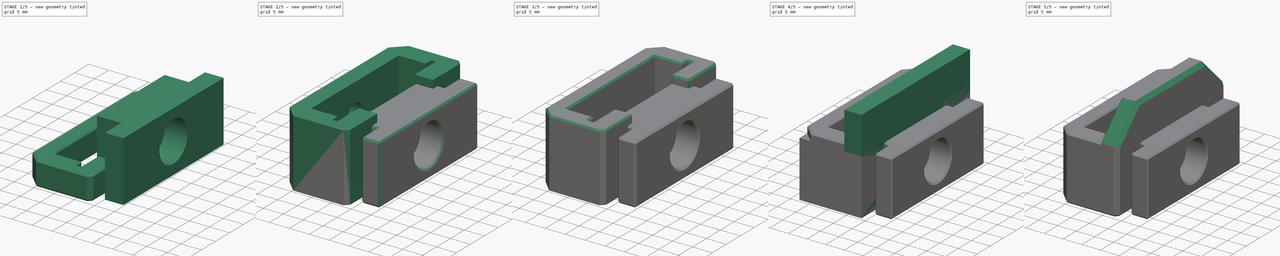
[diagram: build sequence overview — one tinted view per stage of 5, left to right]
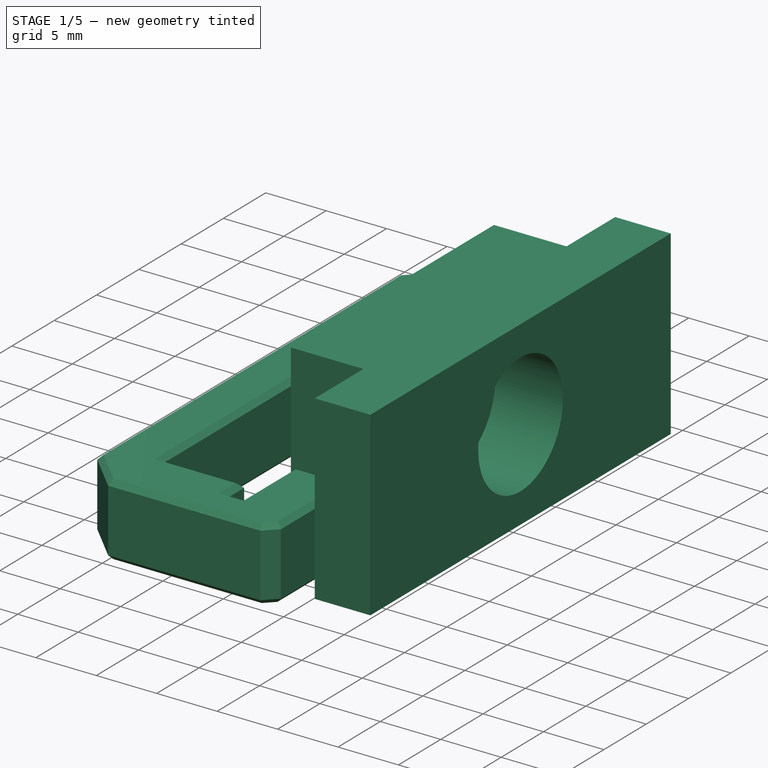
[diagram: stage 1 of 5 — iso view after this stage's code; geometry added in this stage tinted green]
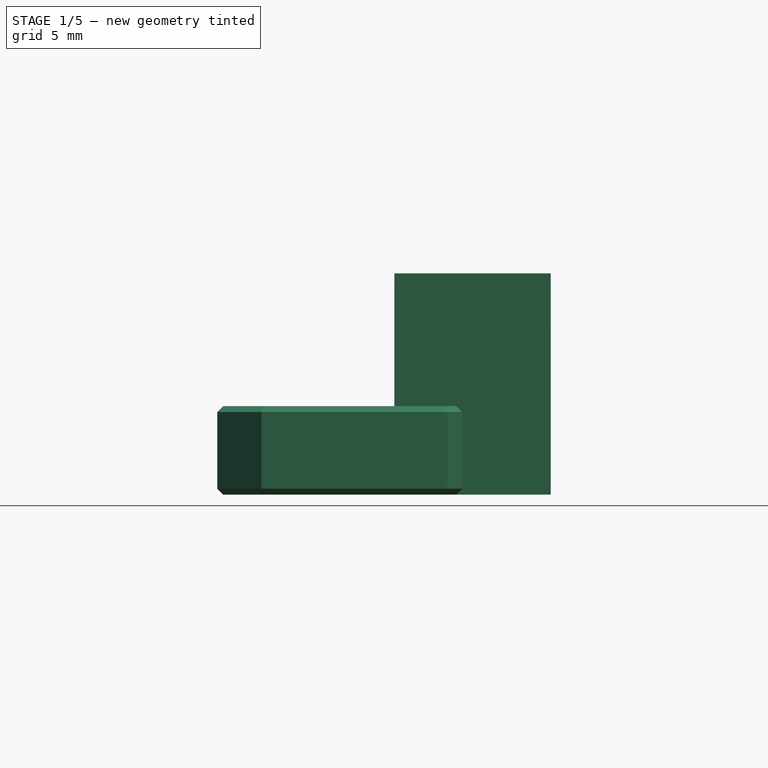
[diagram: stage 1 of 5 — front view after this stage's code; geometry added in this stage tinted green]
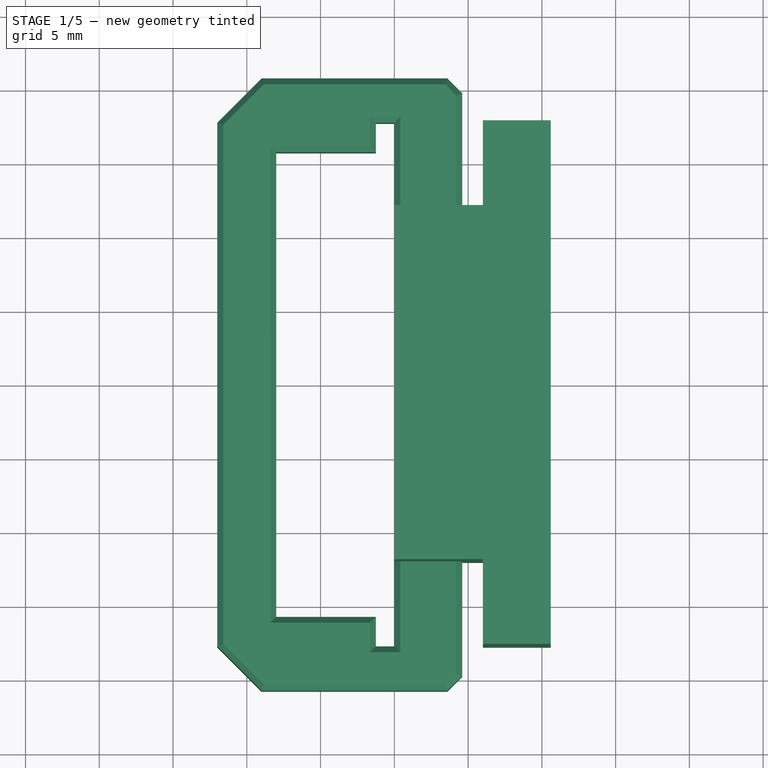
[diagram: stage 1 of 5 — top view after this stage's code; geometry added in this stage tinted green]
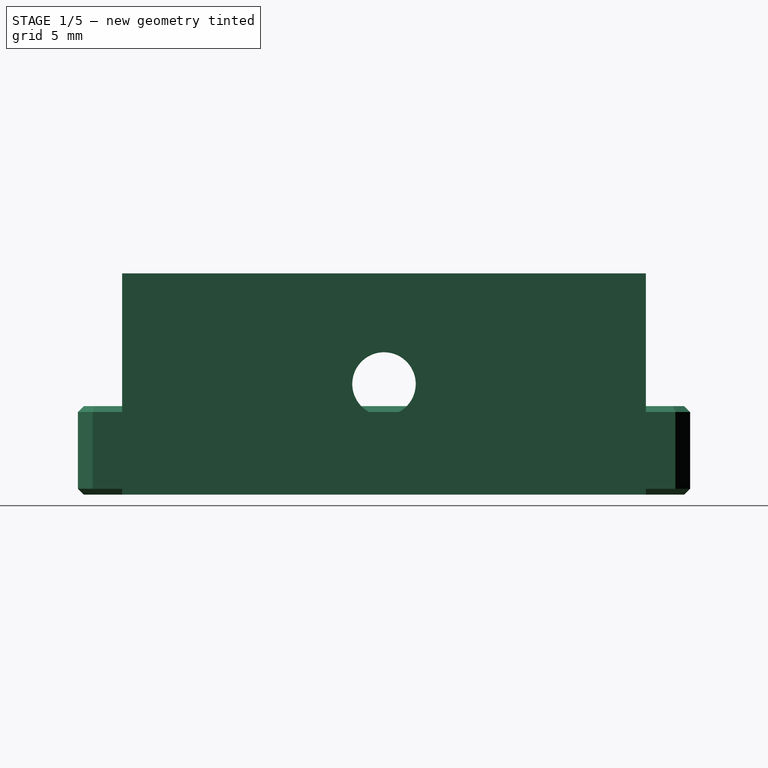
[diagram: stage 1 of 5 — right view after this stage's code; geometry added in this stage tinted green]
FCSTD DOCUMENT  (FreeCAD 0.19R24291 (Git))
Label: din-end
License: All rights reserved
LicenseURL: http://en.wikipedia.org/wiki/All_rights_reserved
objects: Sketcher::SketchObject×11, PartDesign::Chamfer×7, PartDesign::Pocket×6, PartDesign::Pad×5, PartDesign::Body×4, Part::Feature×4, Part::Extrusion×3, PartDesign::FeatureBase×2, Part::Chamfer×1
note: 61 computed .brp shape members not serialized (recipe doc carries the construction recipe); baked Part::Feature solids carry a one-line shape summary decoded from their .brp

FEATURE [PartDesign::Body] Body002  label="end-stopper"
  BaseFeature = -> Extrude001
  Group = -> [BaseFeature001,Sketch006,Pad003,Sketch007,Pocket003,Chamfer005]
  Origin = -> Origin002
  Tip = -> Chamfer005
FEATURE [Sketcher::SketchObject] Sketch008
  FullyConstrained = true
  MapMode = 5
  Support = -> [XY_Plane003]
  sketch-geometry (8):
    g0: LineSegment StartX=6 StartY=12 StartZ=0 EndX=0 EndY=12 EndZ=0
    g1: LineSegment StartX=0 StartY=12 StartZ=0 EndX=0 EndY=-12 EndZ=0
    g2: LineSegment StartX=0 StartY=-12 StartZ=0 EndX=6 EndY=-12 EndZ=0
    g3: LineSegment StartX=6 StartY=-12 StartZ=0 EndX=6 EndY=-17.75 EndZ=0
    g4: LineSegment StartX=6 StartY=-17.75 StartZ=0 EndX=10.6 EndY=-17.75 EndZ=0
    g5: LineSegment StartX=10.6 StartY=-17.75 StartZ=0 EndX=10.6 EndY=17.75 EndZ=0
    g6: LineSegment StartX=10.6 StartY=17.75 StartZ=0 EndX=6 EndY=17.75 EndZ=0
    g7: LineSegment StartX=6 StartY=17.75 StartZ=0 EndX=6 EndY=12 EndZ=0
  constraints (24):
    c: PointOnObject(g0,g-2)
    c: Horizontal(g0)
    c: Coincident(g0,g1)
    c: PointOnObject(g1,g-2)
    c: Coincident(g1,g2)
    c: Horizontal(g2)
    c: Coincident(g2,g3)
    c: Vertical(g3)
    c: Coincident(g3,g4)
    c: Horizontal(g4)
    c: Coincident(g4,g5)
    c: Vertical(g5)
    c: Coincident(g5,g6)
    c: Coincident(g6,g7)
    c: Coincident(g7,g0)
    c: Vertical(g7)
    c: Horizontal(g6)
    c: DistanceY(g5,g5) = 35.5
    c: DistanceY(g-1,g5) = 17.75
    c: DistanceX(g6,g6) = 4.6
    c: DistanceX(g0,g0) = 6
    c: Vertical(g0,g2)
    c: DistanceY(g1,g1) = 24
    c: DistanceY(g-1,g0) = 12
FEATURE [PartDesign::Pad] Pad004
  Direction = (1,1,1)
  Length = 15
  Length2 = 100
  Profile = -> Sketch008
  Type = 0
FEATURE [Sketcher::SketchObject] Sketch009
  FullyConstrained = true
  MapMode = 5
  Placement = pos=(10.6,0,0) rot=(0.57735,0.57735,0.57735;2.0944rad)
  Support = -> [Pad004]
  sketch-geometry (1):
    g0: Circle CenterX=0 CenterY=7.5 CenterZ=0 NormalX=0 NormalY=0 NormalZ=1 AngleXU=0 Radius=2.15
  constraints (3):
    c: PointOnObject(g0,g-2)
    c: Radius(g0) = 2.15
    c: DistanceY(g-1,g0) = 7.5
FEATURE [PartDesign::Pocket] Pocket004
  BaseFeature = -> Pad004
  Length = 5
  Length2 = 100
  Profile = -> Sketch009
  Type = 1
FEATURE [Sketcher::SketchObject] Sketch010
  ExternalGeometry = -> [Pocket004]
  FullyConstrained = true
  MapMode = 5
  Placement = pos=(10.6,0,0) rot=(0.57735,0.57735,0.57735;2.0944rad)
  Support = -> [Pocket004]
  sketch-geometry (1):
    g0: Circle CenterX=0 CenterY=7.5 CenterZ=0 NormalX=0 NormalY=0 NormalZ=1 AngleXU=0 Radius=5
  constraints (2):
    c: Coincident(g0,g-3)
    c: Radius(g0) = 5
FEATURE [PartDesign::Pocket] Pocket005
  BaseFeature = -> Pocket004
  Length = 5.6
  Length2 = 100
  Profile = -> Sketch010
  Type = 0
FEATURE [PartDesign::Body] Body003  label="front-mid-stopper"
  Group = -> [Sketch008,Pad004,Sketch009,Pocket004,Sketch010,Pocket005,Chamfer006]
  Origin = -> Origin003
  Tip = -> Chamfer006
FEATURE [Part::Feature] Cut_cs003  label="profile003"
  shape: bbox 16.6 x 41.5 x 5e-07 mm, 0 faces, 0 solids (baked)
FEATURE [Part::Extrusion] Extrude002
  Base = -> Cut_cs003
  Dir = (0,0,1)
  DirMode = 2
  FaceMakerClass = Part::FaceMakerBullseye
  LengthFwd = 6
  LengthRev = 0
  Solid = true
  Symmetric = false
FEATURE [Part::Chamfer] Chamfer007  label="short-spacer"
  Base = -> Extrude002
  Edges = 44 edges r=0.4: [Edge3,Edge4,Edge6,Edge7,Edge9,Edge10,Edge12,Edge13,Edge15,Edge16,Edge18,Edge19,Edge20,Edge21,Edge22,Edge23,Edge24,Edge25,Edge27,Edge28,Edge30,Edge31,Edge33,Edge34,Edge36,Edge37,Edge39,Edge40,Edge42,Edge43,Edge45,Edge46,Edge48,Edge49,Edge50,Edge51,Edge52,Edge53,Edge54,Edge55,Edge57,Edge58,Edge59,+1 more]
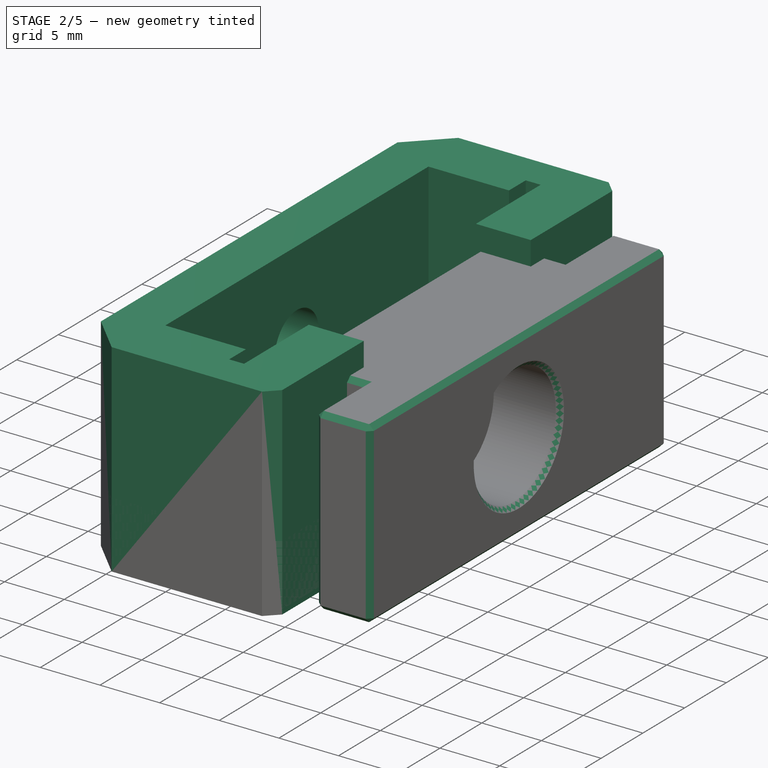
[diagram: stage 2 of 5 — iso view after this stage's code; geometry added in this stage tinted green]
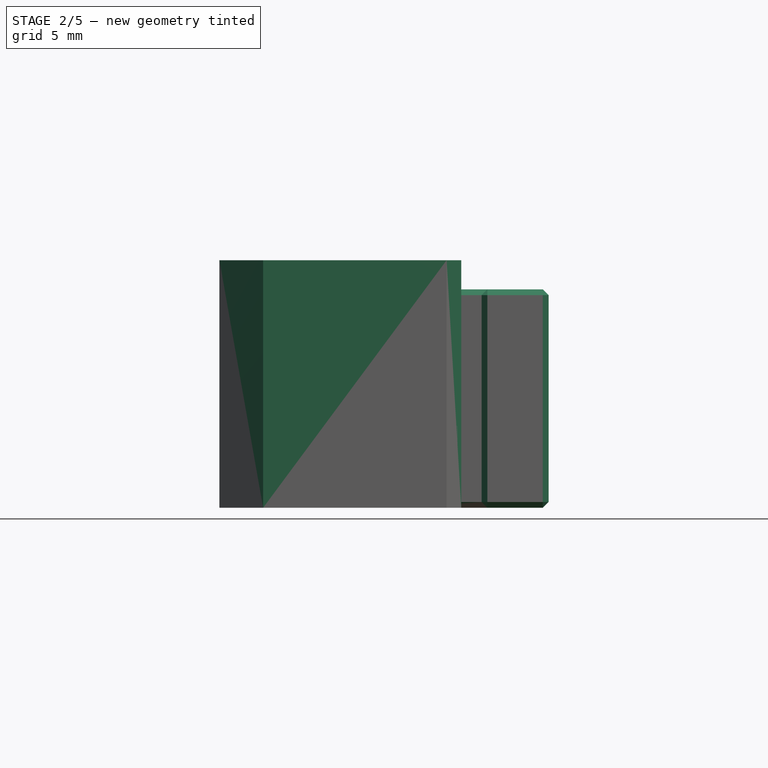
[diagram: stage 2 of 5 — front view after this stage's code; geometry added in this stage tinted green]
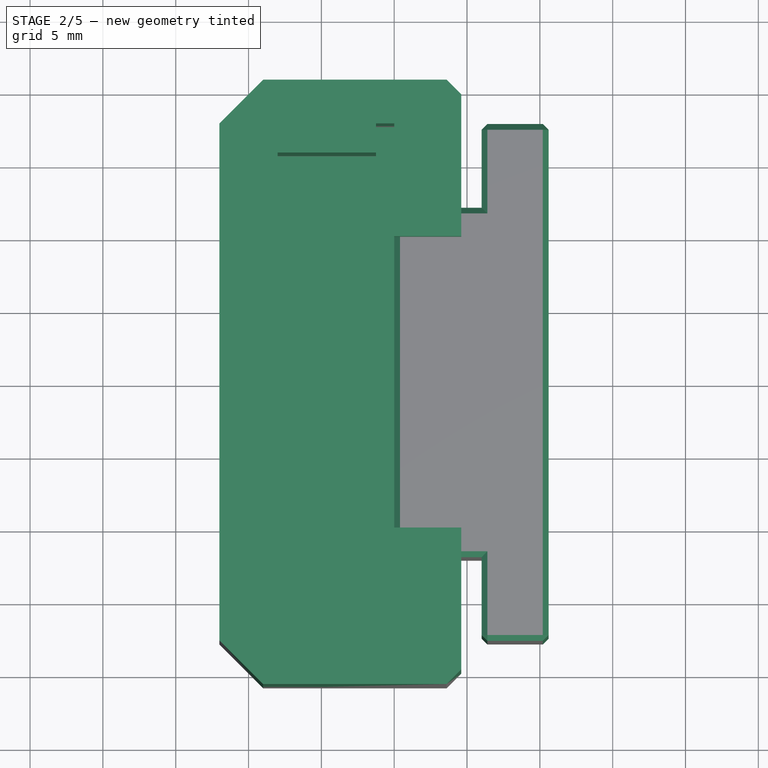
[diagram: stage 2 of 5 — top view after this stage's code; geometry added in this stage tinted green]
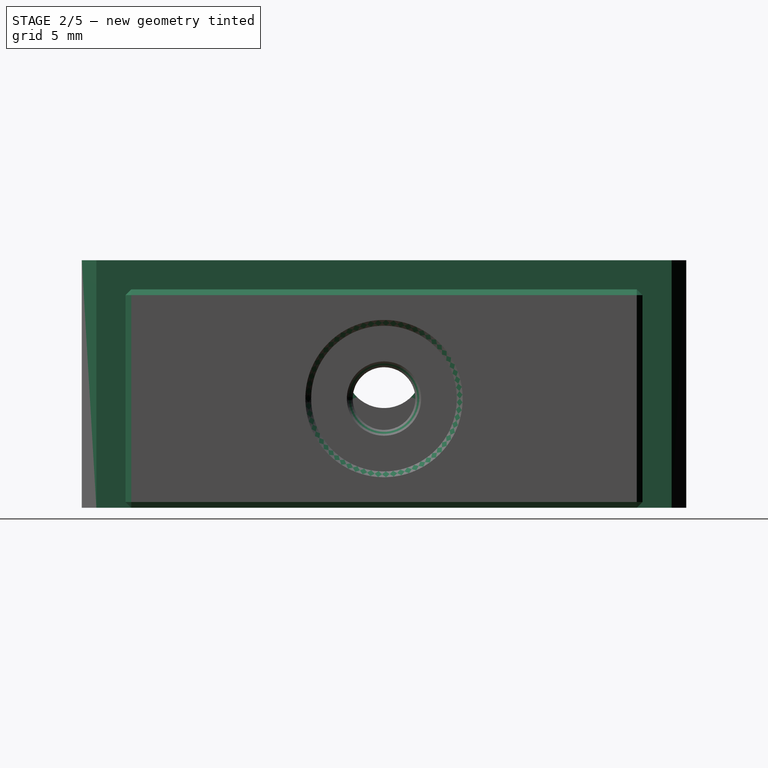
[diagram: stage 2 of 5 — right view after this stage's code; geometry added in this stage tinted green]
FEATURE [Part::Extrusion] Extrude001  label="end-stopper-base"
  Base = -> Cut_cs002
  Dir = (0,0,1)
  DirMode = 2
  FaceMakerClass = Part::FaceMakerBullseye
  LengthFwd = 17
  LengthRev = 0
  Solid = true
  Symmetric = false
FEATURE [PartDesign::Body] Body001  label="mid-stopper"
  BaseFeature = -> Extrude
  Group = -> [BaseFeature,Sketch005,Pocket002,Chamfer004]
  Origin = -> Origin001
  Tip = -> Chamfer004
FEATURE [PartDesign::FeatureBase] BaseFeature001
  BaseFeature = -> Extrude001
FEATURE [Sketcher::SketchObject] Sketch006
  ExternalGeometry = -> [BaseFeature001]
  FullyConstrained = true
  MapMode = 5
  Placement = pos=(0,0,0) rot=(1,0,0;3.14159rad)
  Support = -> [BaseFeature001]
  sketch-geometry (8):
    g0: LineSegment StartX=4.6 StartY=19.75 StartZ=0 EndX=3.6 EndY=20.75 EndZ=0
    g1: LineSegment StartX=3.6 StartY=20.75 StartZ=0 EndX=-9 EndY=20.75 EndZ=0
    g2: LineSegment StartX=-9 StartY=20.75 StartZ=0 EndX=-12 EndY=17.75 EndZ=0
    g3: LineSegment StartX=-12 StartY=17.75 StartZ=0 EndX=-12 EndY=-17.75 EndZ=0
    g4: LineSegment StartX=-12 StartY=-17.75 StartZ=0 EndX=-9 EndY=-20.75 EndZ=0
    g5: LineSegment StartX=-9 StartY=-20.75 StartZ=0 EndX=3.6 EndY=-20.75 EndZ=0
    g6: LineSegment StartX=3.6 StartY=-20.75 StartZ=0 EndX=4.6 EndY=-19.75 EndZ=0
    g7: LineSegment StartX=4.6 StartY=-19.75 StartZ=0 EndX=4.6 EndY=19.75 EndZ=0
  constraints (16):
    c: Coincident(g-5,g0)
    c: Coincident(g0,g-5)
    c: Coincident(g0,g1)
    c: Coincident(g1,g-4)
    c: Coincident(g1,g2)
    c: Coincident(g2,g-4)
    c: Coincident(g2,g3)
    c: Coincident(g3,g-8)
    c: Coincident(g3,g4)
    c: Coincident(g4,g-8)
    c: Coincident(g4,g5)
    c: Coincident(g5,g-7)
    c: Coincident(g5,g6)
    c: Coincident(g6,g-6)
    c: Coincident(g6,g7)
    c: Coincident(g7,g0)
FEATURE [PartDesign::Pad] Pad003
  BaseFeature = -> BaseFeature001
  Direction = (1,1,1)
  Length = 2
  Length2 = 100
  Profile = -> Sketch006
  Reversed = true
  Type = 0
FEATURE [Sketcher::SketchObject] Sketch007
  FullyConstrained = true
  MapMode = 5
  Placement = pos=(-12,0,0) rot=(0.57735,-0.57735,-0.57735;2.0944rad)
  Support = -> [Pad003]
  sketch-geometry (1):
    g0: Circle CenterX=0 CenterY=9.5 CenterZ=0 NormalX=0 NormalY=0 NormalZ=1 AngleXU=0 Radius=2.65
  constraints (3):
    c: PointOnObject(g0,g-2)
    c: DistanceY(g-1,g0) = 9.5
    c: Radius(g0) = 2.65
FEATURE [PartDesign::Pocket] Pocket003
  BaseFeature = -> Pad003
  Length = 5
  Length2 = 100
  Profile = -> Sketch007
  Refine = true
  Type = 1
FEATURE [PartDesign::Chamfer] Chamfer006
  Angle = 45
  Base = -> Pocket005 [Face5,Face4,Edge2,Edge11,Edge10,Edge26,Edge27,Edge22,Edge5,Edge24,Edge28]
  BaseFeature = -> Pocket005
  ChamferType = 0
  FlipDirection = false
  Size = 0.4
  Size2 = 1
  SupportTransform = false
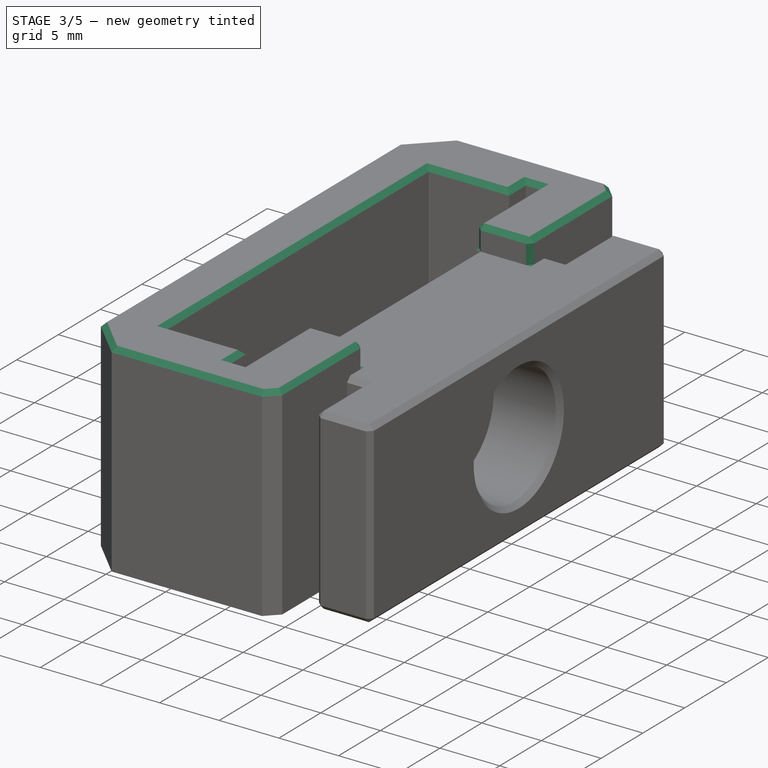
[diagram: stage 3 of 5 — iso view after this stage's code; geometry added in this stage tinted green]
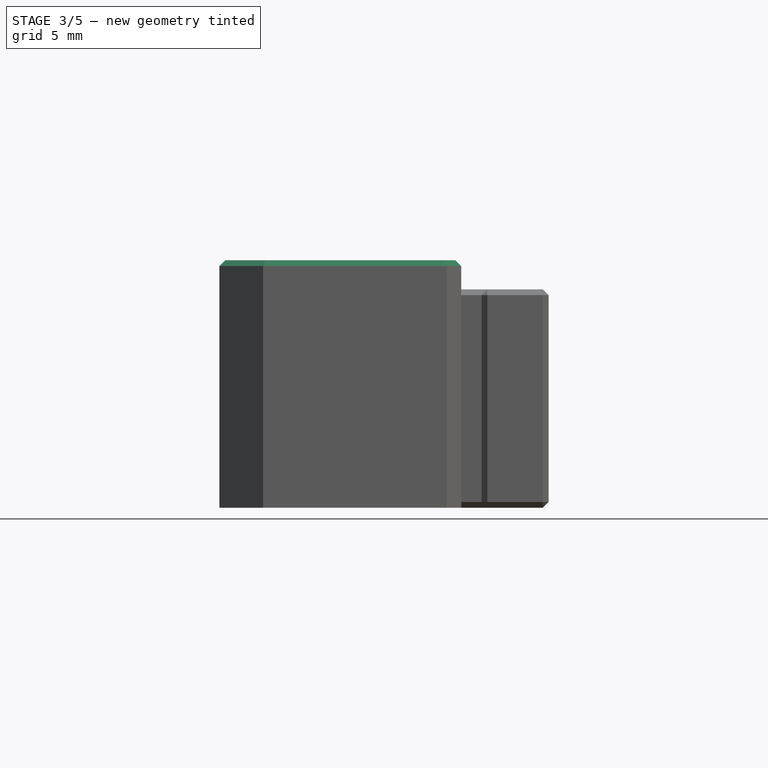
[diagram: stage 3 of 5 — front view after this stage's code; geometry added in this stage tinted green]
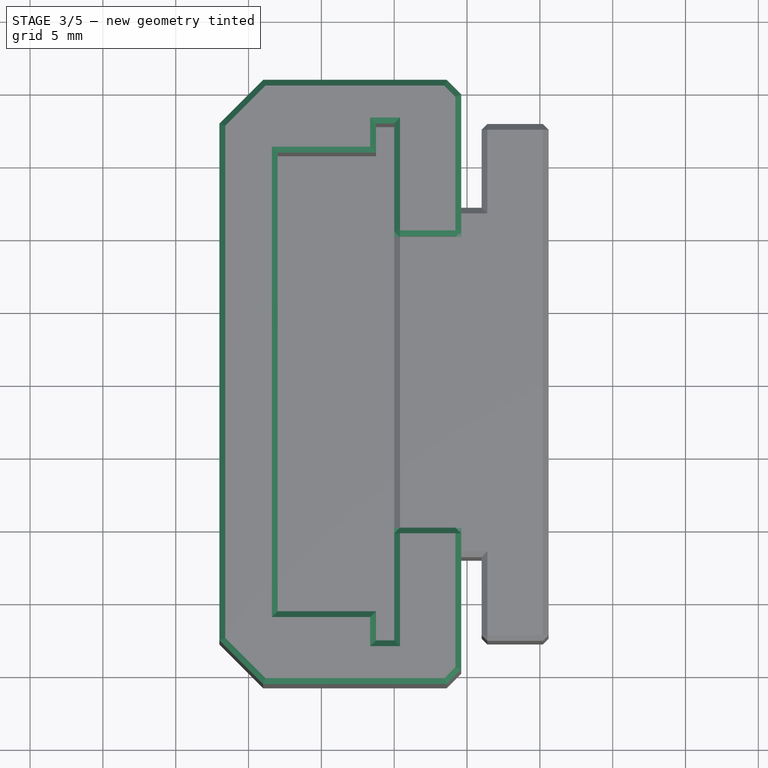
[diagram: stage 3 of 5 — top view after this stage's code; geometry added in this stage tinted green]
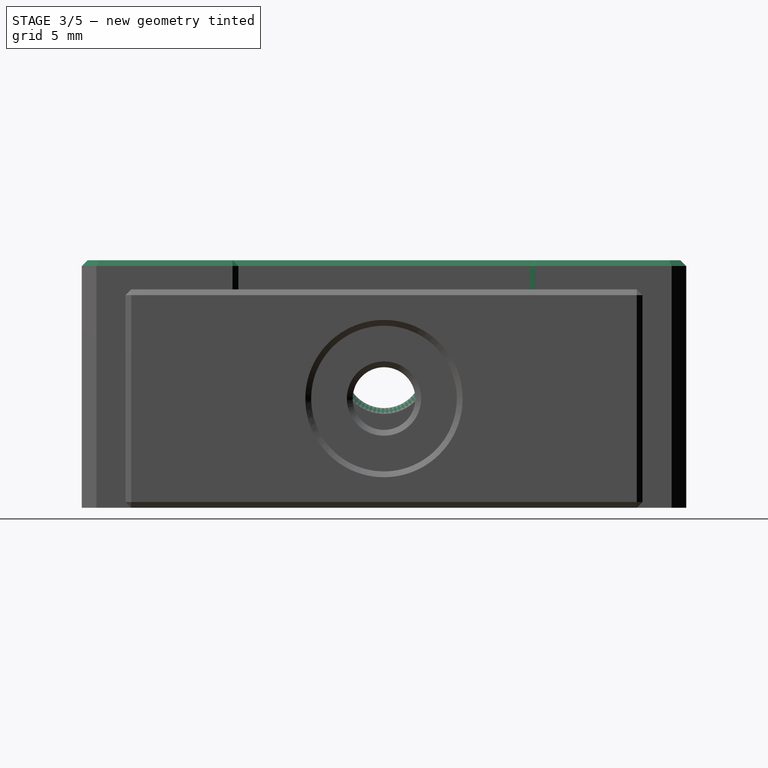
[diagram: stage 3 of 5 — right view after this stage's code; geometry added in this stage tinted green]
FEATURE [PartDesign::Body] Body
  Group = -> [Sketch,Pad,Sketch001,Pad001,Sketch002,Pocket,Sketch003,Pocket001,Sketch004,Pad002,Chamfer,Chamfer001,Chamfer002,Chamfer003]
  Origin = -> Origin
  Tip = -> Chamfer003
FEATURE [Part::Feature] Cut_cs  label="profile"
  shape: bbox 16.6 x 41.5 x 5e-07 mm, 0 faces, 0 solids (baked)
FEATURE [Part::Feature] Cut_cs001  label="profile001"
  shape: bbox 16.6 x 41.5 x 5e-07 mm, 0 faces, 0 solids (baked)
FEATURE [Part::Feature] Cut_cs002  label="profile002"
  shape: bbox 16.6 x 41.5 x 5e-07 mm, 0 faces, 0 solids (baked)
FEATURE [Part::Extrusion] Extrude  label="mid-stopper-base"
  Base = -> Cut_cs001
  Dir = (0,0,1)
  DirMode = 2
  FaceMakerClass = Part::FaceMakerBullseye
  LengthFwd = 15
  LengthRev = 0
  Solid = true
  Symmetric = false
FEATURE [PartDesign::FeatureBase] BaseFeature
  BaseFeature = -> Extrude
FEATURE [Sketcher::SketchObject] Sketch005
  FullyConstrained = true
  MapMode = 5
  Placement = pos=(-12,0,0) rot=(0.57735,-0.57735,-0.57735;2.0944rad)
  Support = -> [BaseFeature]
  sketch-geometry (1):
    g0: Circle CenterX=0 CenterY=7.5 CenterZ=0 NormalX=0 NormalY=0 NormalZ=1 AngleXU=0 Radius=2.65
  constraints (3):
    c: PointOnObject(g0,g-2)
    c: DistanceY(g-1,g0) = 7.5
    c: Radius(g0) = 2.65
FEATURE [PartDesign::Pocket] Pocket002
  BaseFeature = -> BaseFeature
  Length = 5
  Length2 = 100
  Profile = -> Sketch005
  Type = 1
FEATURE [PartDesign::Chamfer] Chamfer005
  Angle = 45
  Base = -> Pocket003 [Face16,Face1,Edge45,Edge34,Edge22,Edge23,Edge42,Edge44,Edge47]
  BaseFeature = -> Pocket003
  ChamferType = 0
  FlipDirection = false
  Size = 0.4
  Size2 = 1
  SupportTransform = false
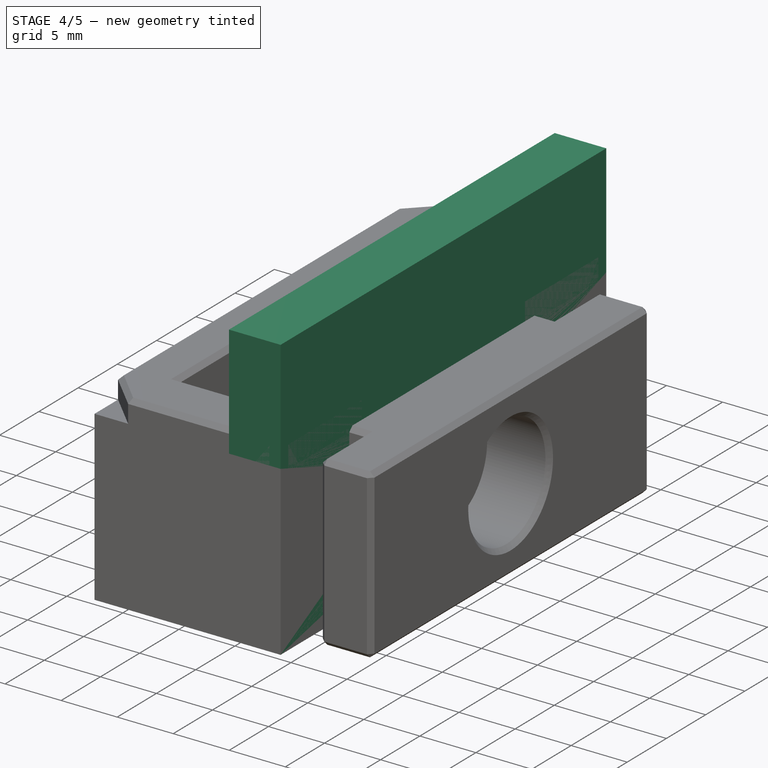
[diagram: stage 4 of 5 — iso view after this stage's code; geometry added in this stage tinted green]
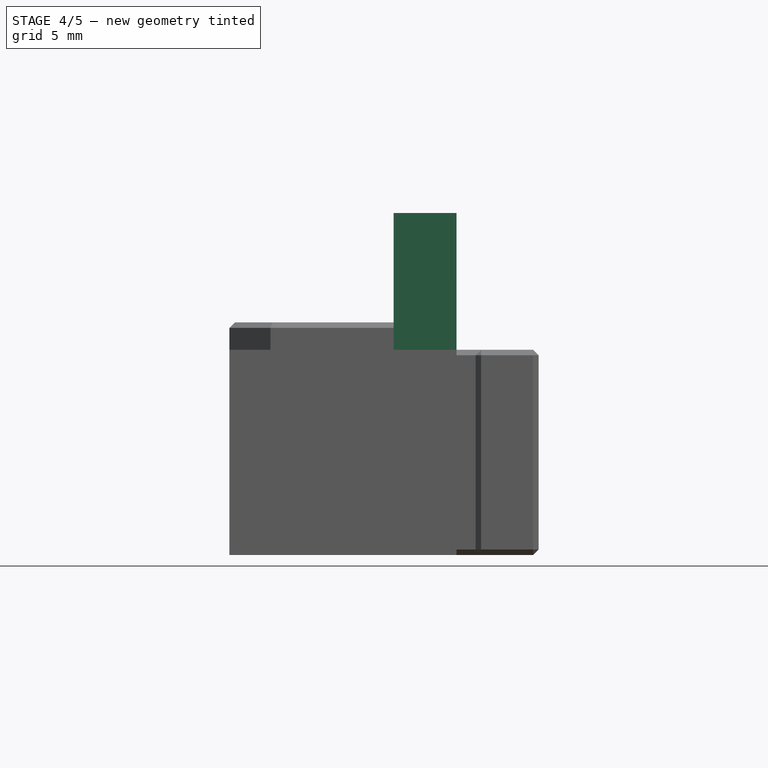
[diagram: stage 4 of 5 — front view after this stage's code; geometry added in this stage tinted green]
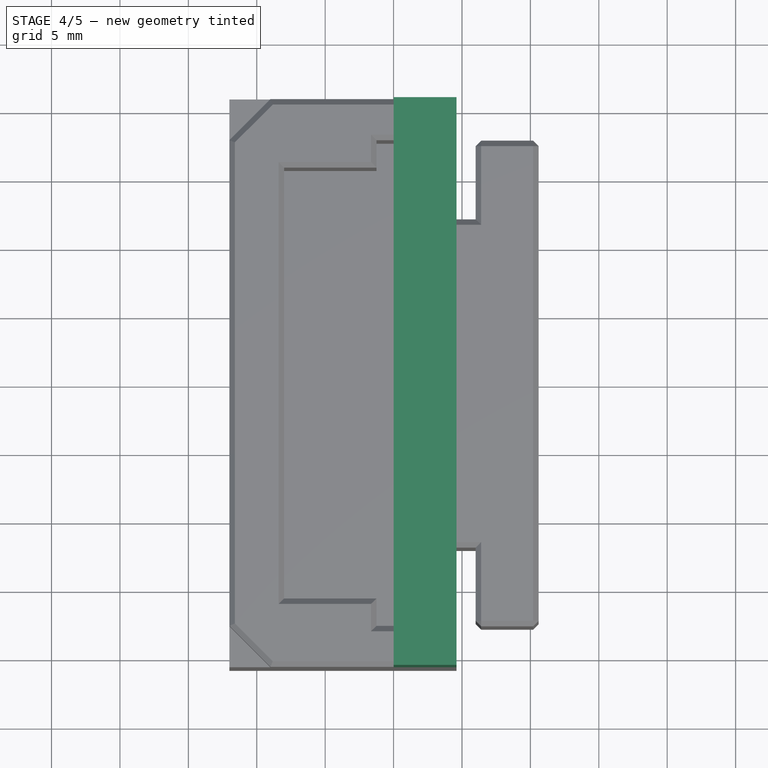
[diagram: stage 4 of 5 — top view after this stage's code; geometry added in this stage tinted green]
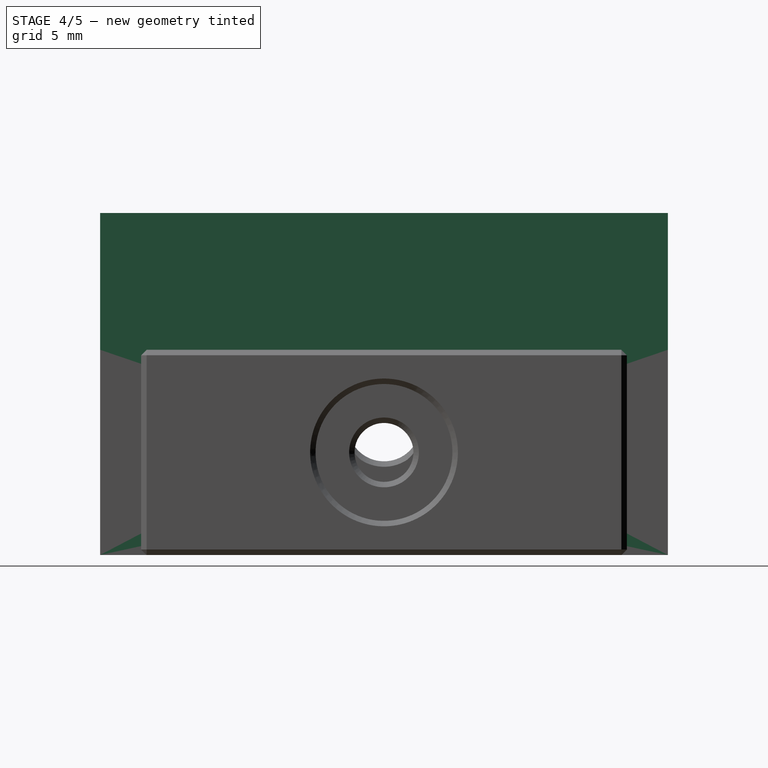
[diagram: stage 4 of 5 — right view after this stage's code; geometry added in this stage tinted green]
FEATURE [Sketcher::SketchObject] Sketch
  FullyConstrained = true
  MapMode = 5
  Support = -> [XY_Plane]
  sketch-geometry (12):
    g0: LineSegment StartX=0 StartY=17.75 StartZ=0 EndX=0 EndY=-17.75 EndZ=0
    g1: LineSegment StartX=0 StartY=-17.75 StartZ=0 EndX=-1.25 EndY=-17.75 EndZ=0
    g2: LineSegment StartX=-1.25 StartY=-17.75 StartZ=0 EndX=-1.25 EndY=-15.75 EndZ=0
    g3: LineSegment StartX=-1.25 StartY=-15.75 StartZ=0 EndX=-8 EndY=-15.75 EndZ=0
    g4: LineSegment StartX=-8 StartY=-15.75 StartZ=0 EndX=-8 EndY=15.75 EndZ=0
    g5: LineSegment StartX=-8 StartY=15.75 StartZ=0 EndX=-1.25 EndY=15.75 EndZ=0
    g6: LineSegment StartX=-1.25 StartY=15.75 StartZ=0 EndX=-1.25 EndY=17.75 EndZ=0
    g7: LineSegment StartX=-1.25 StartY=17.75 StartZ=0 EndX=0 EndY=17.75 EndZ=0
    g8: LineSegment StartX=-12 StartY=20.75 StartZ=0 EndX=4.6 EndY=20.75 EndZ=0
    g9: LineSegment StartX=4.6 StartY=20.75 StartZ=0 EndX=4.6 EndY=-20.75 EndZ=0
    g10: LineSegment StartX=4.6 StartY=-20.75 StartZ=0 EndX=-12 EndY=-20.75 EndZ=0
    g11: LineSegment StartX=-12 StartY=-20.75 StartZ=0 EndX=-12 EndY=20.75 EndZ=0
  constraints (36):
    c: PointOnObject(g0,g-2)
    c: PointOnObject(g0,g-2)
    c: Coincident(g0,g1)
    c: Horizontal(g1)
    c: Coincident(g1,g2)
    c: Vertical(g2)
    c: Coincident(g2,g3)
    c: Horizontal(g3)
    c: Coincident(g3,g4)
    c: Vertical(g4)
    c: Coincident(g4,g5)
    c: Horizontal(g5)
    c: Coincident(g5,g6)
    c: Coincident(g6,g7)
    c: Coincident(g7,g0)
    c: Horizontal(g7)
    c: Vertical(g6)
    c: Vertical(g5,g2)
    c: DistanceY(g0,g0) = 35.5
    c: DistanceY(g-1,g0) = 17.75
    c: DistanceY(g4,g4) = 31.5
    c: DistanceY(g-1,g4) = 15.75
    c: DistanceX(g7,g7) = 1.25
    c: DistanceX(g4,g0) = 8
    c: Coincident(g8,g9)
    c: Coincident(g9,g10)
    c: Coincident(g10,g11)
    c: Coincident(g11,g8)
    c: Horizontal(g8)
    c: Horizontal(g10)
    c: Vertical(g9)
    c: Vertical(g11)
    c: DistanceY(g0,g8) = 3
    c: DistanceY(g9,g0) = 3
    c: DistanceX(g0,g9) = 4.6
    c: DistanceX(g10,g3) = 4
FEATURE [PartDesign::Pad] Pad
  Direction = (1,1,1)
  Length = 15
  Length2 = 100
  Profile = -> Sketch
  Type = 0
FEATURE [Sketcher::SketchObject] Sketch001
  FullyConstrained = true
  MapMode = 5
  Placement = pos=(4.6,0,0) rot=(0.57735,0.57735,0.57735;2.0944rad)
  Support = -> [Pad]
  sketch-geometry (4):
    g0: LineSegment StartX=-20.75 StartY=15 StartZ=0 EndX=20.75 EndY=15 EndZ=0
    g1: LineSegment StartX=20.75 StartY=15 StartZ=0 EndX=20.75 EndY=25 EndZ=0
    g2: LineSegment StartX=20.75 StartY=25 StartZ=0 EndX=-20.75 EndY=25 EndZ=0
    g3: LineSegment StartX=-20.75 StartY=25 StartZ=0 EndX=-20.75 EndY=15 EndZ=0
  constraints (12):
    c: Horizontal(g0)
    c: Coincident(g0,g1)
    c: Coincident(g1,g2)
    c: Horizontal(g2)
    c: Coincident(g2,g3)
    c: Coincident(g3,g0)
    c: DistanceY(g-1,g0) = 15
    c: DistanceY(g0,g2) = 10
    c: Vertical(g3)
    c: Vertical(g1)
    c: DistanceX(g0,g-1) = 20.75
    c: DistanceX(g-1,g0) = 20.75
FEATURE [PartDesign::Pad] Pad001
  BaseFeature = -> Pad
  Direction = (1,1,1)
  Length = 10
  Length2 = 100
  Profile = -> Sketch001
  Type = 3
  UpToFace = -> Pad [Face12]
FEATURE [Sketcher::SketchObject] Sketch002
  FullyConstrained = true
  MapMode = 5
  Placement = pos=(4.6,0,0) rot=(0.57735,0.57735,0.57735;2.0944rad)
  Support = -> [Pad001]
  sketch-geometry (1):
    g0: Circle CenterX=0 CenterY=9 CenterZ=0 NormalX=0 NormalY=0 NormalZ=1 AngleXU=0 Radius=4.5
  constraints (3):
    c: PointOnObject(g0,g-2)
    c: Radius(g0) = 4.5
    c: DistanceY(g-1,g0) = 9
FEATURE [PartDesign::Pocket] Pocket
  BaseFeature = -> Pad001
  Length = 0
  Length2 = 100
  Profile = -> Sketch002
  Type = 3
  UpToFace = -> Pad001 [Face16]
FEATURE [Sketcher::SketchObject] Sketch003
  FullyConstrained = true
  MapMode = 5
  Placement = pos=(-12,0,0) rot=(0.57735,-0.57735,-0.57735;2.0944rad)
  Support = -> [Pocket]
  sketch-geometry (1):
    g0: Circle CenterX=0 CenterY=9 CenterZ=0 NormalX=0 NormalY=0 NormalZ=1 AngleXU=0 Radius=2.65
  constraints (3):
    c: PointOnObject(g0,g-2)
    c: DistanceY(g-1,g0) = 9
    c: Radius(g0) = 2.65
FEATURE [PartDesign::Pocket] Pocket001
  BaseFeature = -> Pocket
  Length = 0
  Length2 = 100
  Profile = -> Sketch003
  Refine = true
  Type = 3
  UpToFace = -> Pocket [Face13]
FEATURE [PartDesign::Chamfer] Chamfer004
  Angle = 45
  Base = -> Pocket002 [Face5,Edge46,Edge58,Face4,Face22,Face12]
  BaseFeature = -> Pocket002
  ChamferType = 0
  FlipDirection = false
  Size = 0.4
  Size2 = 1
  SupportTransform = false
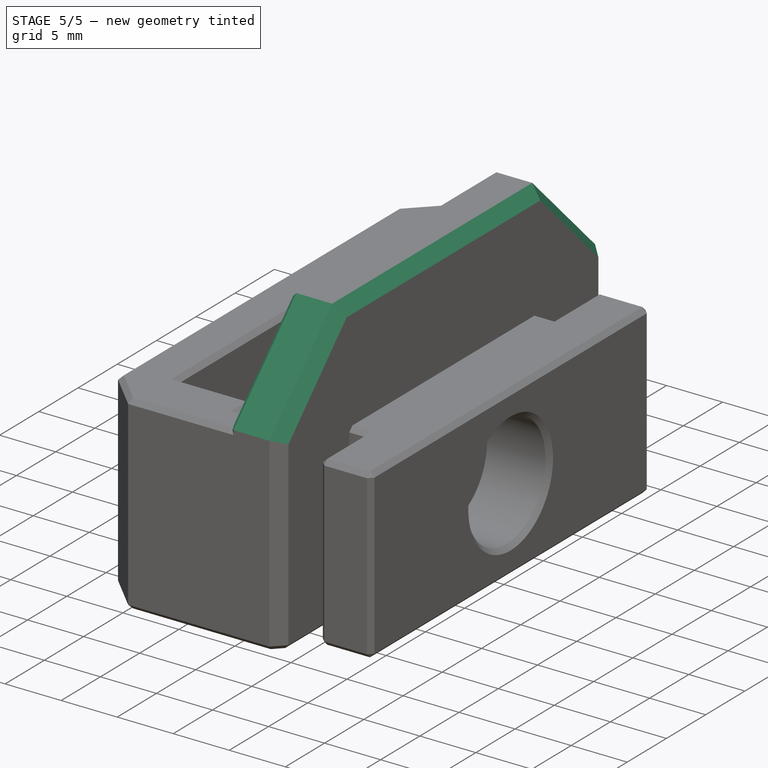
[diagram: stage 5 of 5 — iso view after this stage's code; geometry added in this stage tinted green]
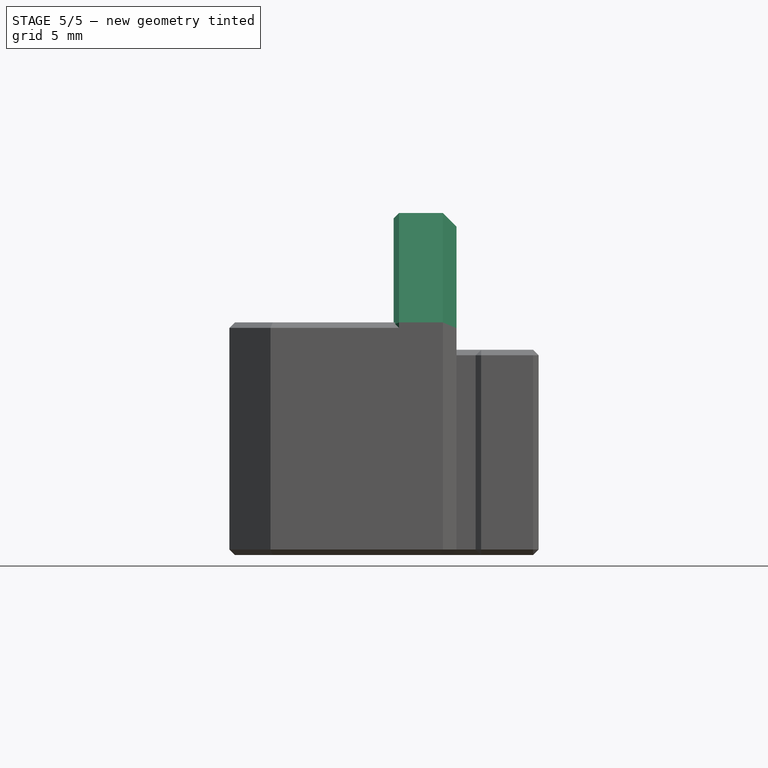
[diagram: stage 5 of 5 — front view after this stage's code; geometry added in this stage tinted green]
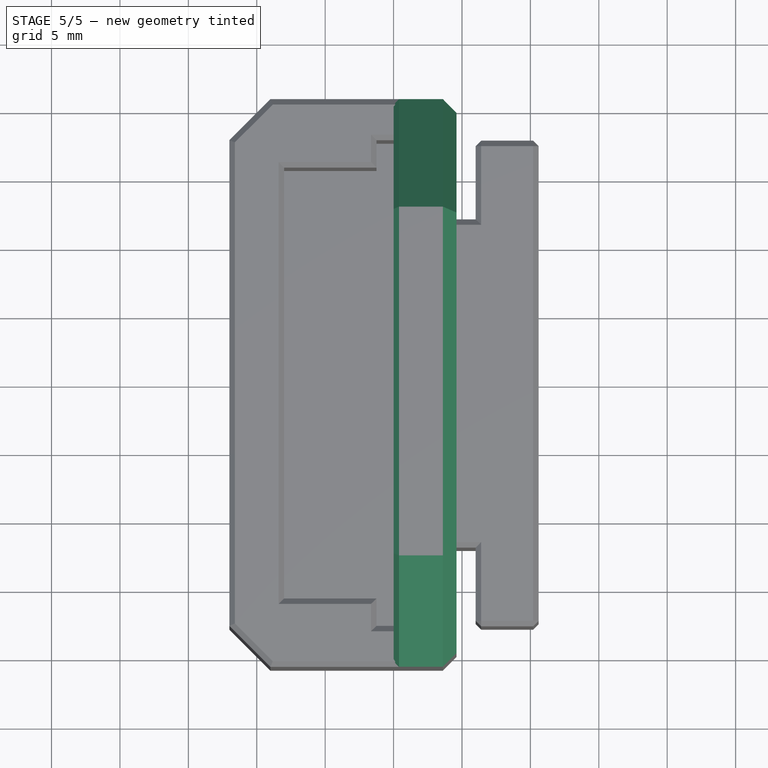
[diagram: stage 5 of 5 — top view after this stage's code; geometry added in this stage tinted green]
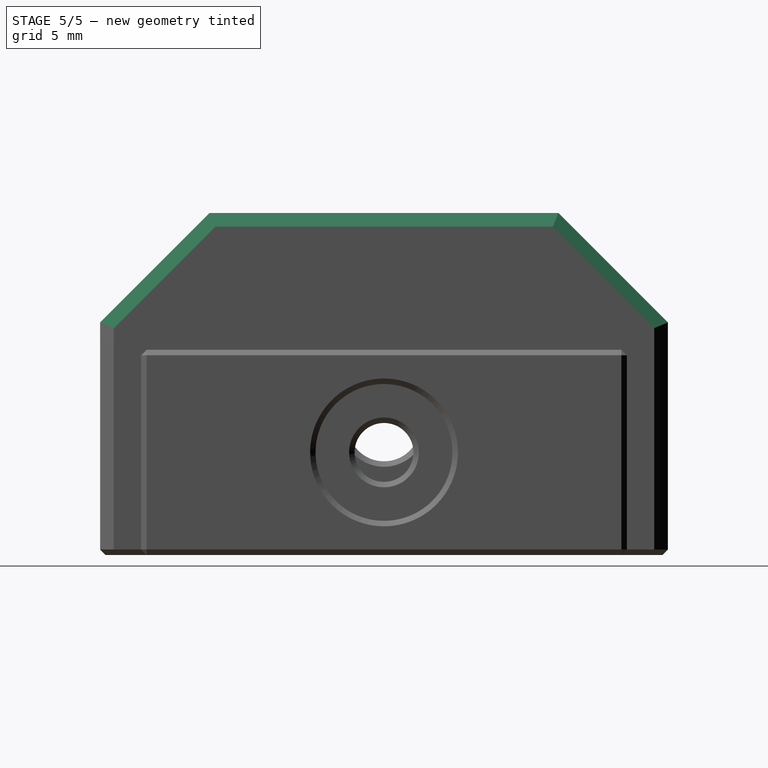
[diagram: stage 5 of 5 — right view after this stage's code; geometry added in this stage tinted green]
FEATURE [Sketcher::SketchObject] Sketch004
  ExternalGeometry = -> [Pocket001]
  FullyConstrained = true
  MapMode = 5
  Placement = pos=(0,0,0) rot=(1,0,0;3.14159rad)
  Support = -> [Pocket001]
  sketch-geometry (4):
    g0: LineSegment StartX=-12 StartY=20.75 StartZ=0 EndX=4.6 EndY=20.75 EndZ=0
    g1: LineSegment StartX=4.6 StartY=20.75 StartZ=0 EndX=4.6 EndY=-20.75 EndZ=0
    g2: LineSegment StartX=4.6 StartY=-20.75 StartZ=0 EndX=-12 EndY=-20.75 EndZ=0
    g3: LineSegment StartX=-12 StartY=-20.75 StartZ=0 EndX=-12 EndY=20.75 EndZ=0
  constraints (10):
    c: Coincident(g0,g1)
    c: Coincident(g1,g2)
    c: Coincident(g2,g3)
    c: Coincident(g3,g0)
    c: Horizontal(g0)
    c: Horizontal(g2)
    c: Vertical(g1)
    c: Vertical(g3)
    c: Coincident(g0,g-3)
    c: Coincident(g1,g-4)
FEATURE [PartDesign::Pad] Pad002
  BaseFeature = -> Pocket001
  Direction = (1,1,1)
  Length = 1.5
  Length2 = 100
  Profile = -> Sketch004
  Refine = true
  Reversed = true
  Type = 0
FEATURE [PartDesign::Chamfer] Chamfer
  Angle = 45
  Base = -> Pad002 [Edge38,Edge35]
  BaseFeature = -> Pad002
  ChamferType = 0
  FlipDirection = false
  Size = 8
  Size2 = 1
  SupportTransform = false
FEATURE [PartDesign::Chamfer] Chamfer001
  Angle = 45
  Base = -> Chamfer [Edge5,Edge34]
  BaseFeature = -> Chamfer
  ChamferType = 0
  FlipDirection = false
  Size = 3
  Size2 = 1
  SupportTransform = false
FEATURE [PartDesign::Chamfer] Chamfer002
  Angle = 45
  Base = -> Chamfer001 [Face5,Edge37,Edge38,Edge36,Edge34,Edge6]
  BaseFeature = -> Chamfer001
  ChamferType = 0
  FlipDirection = false
  Size = 1
  Size2 = 1
  SupportTransform = false
FEATURE [PartDesign::Chamfer] Chamfer003
  Angle = 45
  Base = -> Chamfer002 [Edge5,Edge32,Edge30,Edge29,Edge28,Edge15,Edge14,Edge13,Edge8,Edge3,Edge19,Edge21,Edge24,Edge18,Edge20,Edge22,Edge35,Edge73,Edge42,Edge66]
  BaseFeature = -> Chamfer002
  ChamferType = 0
  FlipDirection = false
  Size = 0.4
  Size2 = 1
  SupportTransform = false
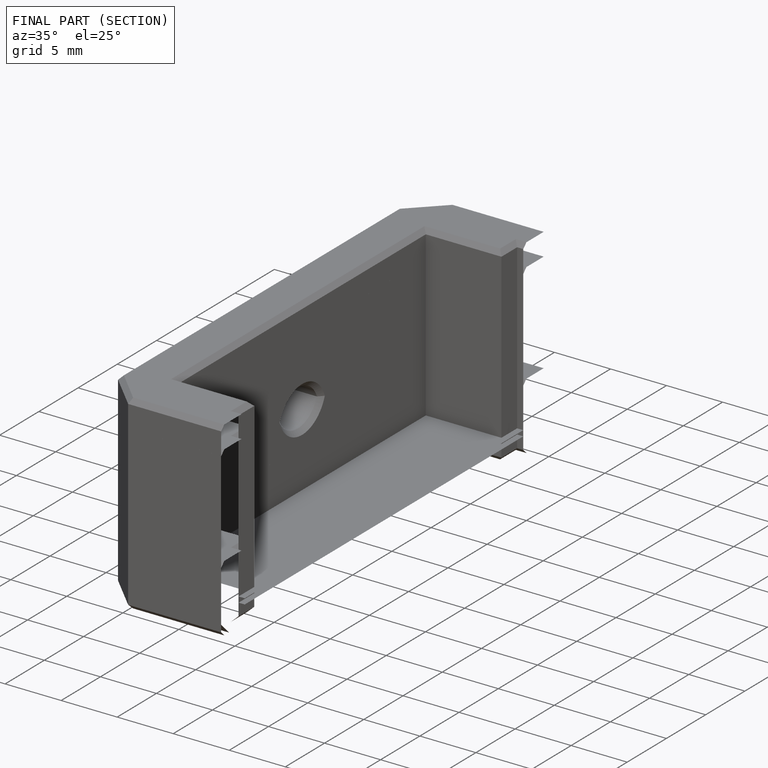
[diagram: finished part — half-section view (interior)]
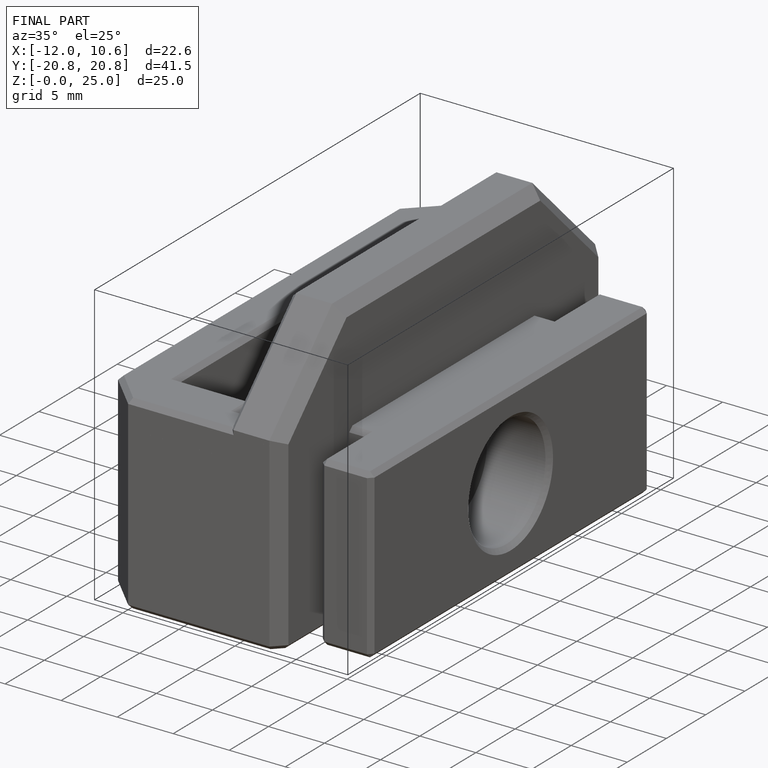
[diagram: finished part — iso view with bounding-box wireframe]
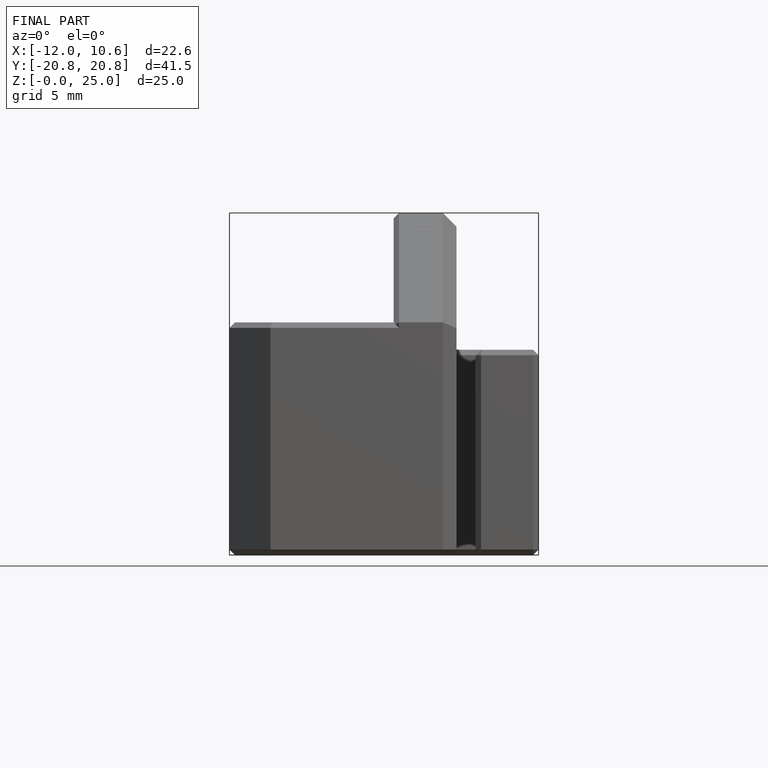
[diagram: finished part — front view with bounding-box wireframe]
